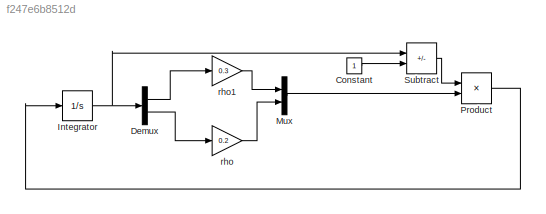
MODEL slx_f247e6b8512d
KIND model
CONFIG AbsTol = auto
CONFIG EnableMultiTasking = off
CONFIG FixedStep = auto
CONFIG MaxStep = auto
CONFIG MinStep = auto
CONFIG RelTol = 1e-3
CONFIG SampleTimeConstraint = Unconstrained
CONFIG SolverName = VariableStepAuto
CONFIG StartTime = 0.0
CONFIG StopTime = 70
BLOCK [Constant] Constant
BLOCK [Demux] Demux
  Outputs = 2
  Ports = [1, 2]
BLOCK [Integrator] Integrator
  InitialCondition = [0.0001 0.0001]
  Ports = [1, 1]
BLOCK [Mux] Mux
  DisplayOption = bar
  Inputs = 2
  Ports = [2, 1]
BLOCK [Product] Product
  Ports = [2, 1]
BLOCK [Sum] Subtract
  IconShape = rectangular
  Inputs = -+
  Ports = [2, 1]
BLOCK [Gain] rho
  Gain = 0.2
BLOCK [Gain] rho1
  Gain = 0.3
LINE Constant:1 -> Subtract:2
LINE Demux:1 -> rho1:1
LINE Demux:2 -> rho:1
NET Integrator:1 -> Demux:1, Subtract:1
LINE Mux:1 -> Product:2
LINE Product:1 -> Integrator:1
LINE Subtract:1 -> Product:1
LINE rho1:1 -> Mux:1
LINE rho:1 -> Mux:2
note: NET lines group one-source signal fan-out (src -> all destinations, sorted); 1:1 wires keep LINE
